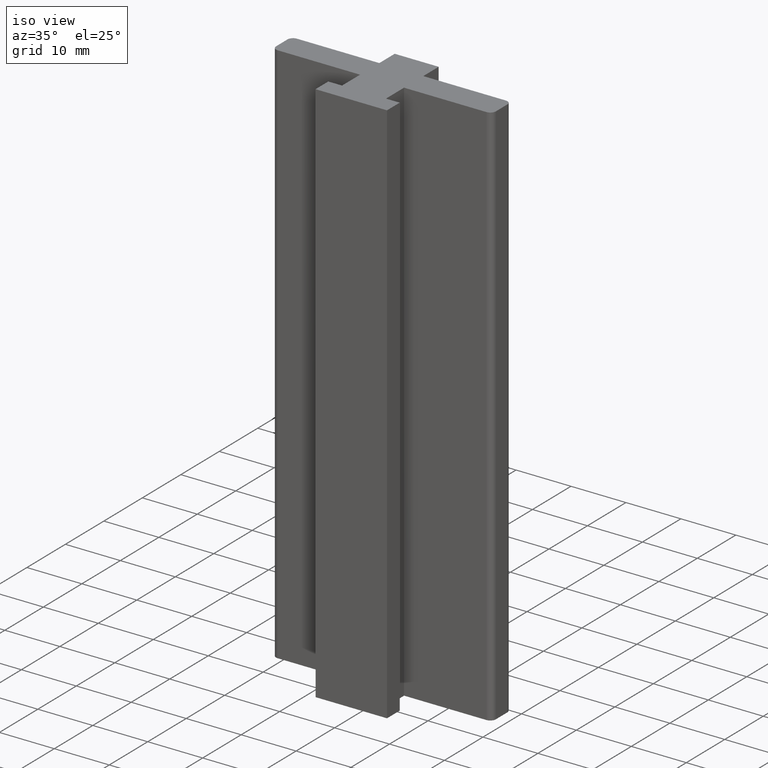
[diagram: clean part render]
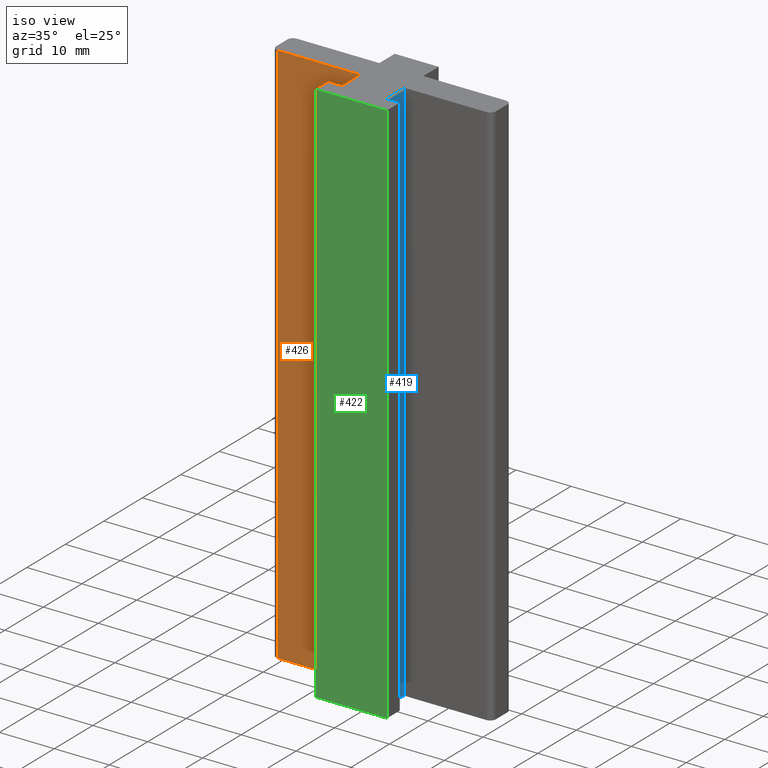
[diagram: same view with three faces highlighted in distinct colors, each labeled with its STEP entity id]
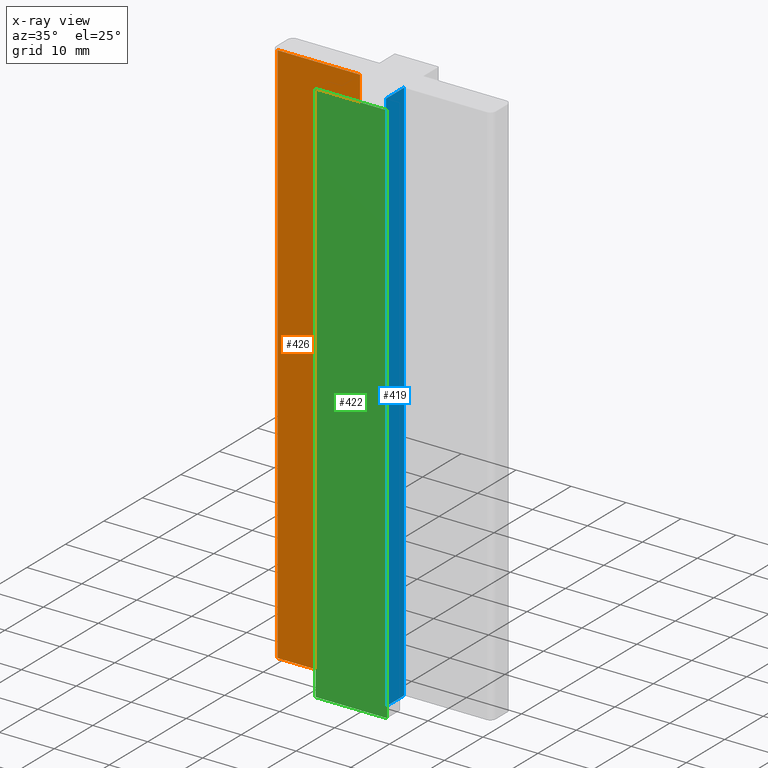
[diagram: x-ray of the same camera — body ghosted, the three highlighted faces saturated]
A machine part, iso view with three faces highlighted in distinct colors.
The next image is the same camera in x-ray (body ghosted, the three faces saturated) — at least one of them is partly hidden behind the body in this view.
Their STEP definitions:

[orange] entity #426 — the highlighted planar face has unit normal (0, -1, 0).
#40=FACE_OUTER_BOUND('',#62,.T.);
#62=EDGE_LOOP('',(#327,#328,#329,#330));
#106=LINE('',#662,#158);
#107=LINE('',#665,#159);
#108=LINE('',#667,#160);
#109=LINE('',#668,#161);
#158=VECTOR('',#538,100.);
#159=VECTOR('',#541,15.);
#160=VECTOR('',#542,15.);
#161=VECTOR('',#543,100.);
#201=VERTEX_POINT('',#658);
#202=VERTEX_POINT('',#660);
#203=VERTEX_POINT('',#664);
#204=VERTEX_POINT('',#666);
#254=EDGE_CURVE('',#201,#202,#106,.T.);
#255=EDGE_CURVE('',#203,#201,#107,.T.);
#256=EDGE_CURVE('',#204,#202,#108,.T.);
#257=EDGE_CURVE('',#203,#204,#109,.T.);
#327=ORIENTED_EDGE('',*,*,#255,.T.);
#328=ORIENTED_EDGE('',*,*,#254,.T.);
#329=ORIENTED_EDGE('',*,*,#256,.F.);
#330=ORIENTED_EDGE('',*,*,#257,.F.);
#406=PLANE('',#454);
#426=ADVANCED_FACE('',(#40),#406,.T.);
#454=AXIS2_PLACEMENT_3D('',#663,#539,#540);
#538=DIRECTION('',(0.,0.,1.));
#539=DIRECTION('center_axis',(0.,-1.,0.));
#540=DIRECTION('ref_axis',(1.,0.,0.));
#541=DIRECTION('',(1.,0.,0.));
#542=DIRECTION('',(1.,0.,0.));
#543=DIRECTION('',(0.,0.,1.));
#658=CARTESIAN_POINT('',(-4.,2.35,0.));
#660=CARTESIAN_POINT('',(-4.,2.35,100.));
#662=CARTESIAN_POINT('',(-4.,2.35,0.));
#663=CARTESIAN_POINT('Origin',(-19.,2.35,0.));
#664=CARTESIAN_POINT('',(-19.,2.35,0.));
#665=CARTESIAN_POINT('',(-19.,2.35,0.));
#666=CARTESIAN_POINT('',(-19.,2.35,100.));
#667=CARTESIAN_POINT('',(-19.,2.35,100.));
#668=CARTESIAN_POINT('',(-19.,2.35,0.));

[blue] entity #419 — the highlighted planar face has unit normal (1, 0, 0).
#33=FACE_OUTER_BOUND('',#55,.T.);
#55=EDGE_LOOP('',(#299,#300,#301,#302));
#85=LINE('',#620,#137);
#86=LINE('',#623,#138);
#87=LINE('',#625,#139);
#88=LINE('',#626,#140);
#137=VECTOR('',#503,100.);
#138=VECTOR('',#506,4.7);
#139=VECTOR('',#507,4.7);
#140=VECTOR('',#508,100.);
#187=VERTEX_POINT('',#616);
#188=VERTEX_POINT('',#618);
#189=VERTEX_POINT('',#622);
#190=VERTEX_POINT('',#624);
#233=EDGE_CURVE('',#187,#188,#85,.T.);
#234=EDGE_CURVE('',#189,#187,#86,.T.);
#235=EDGE_CURVE('',#190,#188,#87,.T.);
#236=EDGE_CURVE('',#189,#190,#88,.T.);
#299=ORIENTED_EDGE('',*,*,#234,.T.);
#300=ORIENTED_EDGE('',*,*,#233,.T.);
#301=ORIENTED_EDGE('',*,*,#235,.F.);
#302=ORIENTED_EDGE('',*,*,#236,.F.);
#399=PLANE('',#447);
#419=ADVANCED_FACE('',(#33),#399,.T.);
#447=AXIS2_PLACEMENT_3D('',#621,#504,#505);
#503=DIRECTION('',(0.,0.,1.));
#504=DIRECTION('center_axis',(1.,0.,0.));
#505=DIRECTION('ref_axis',(0.,1.,0.));
#506=DIRECTION('',(0.,1.,0.));
#507=DIRECTION('',(0.,1.,0.));
#508=DIRECTION('',(0.,0.,1.));
#616=CARTESIAN_POINT('',(4.,2.35,0.));
#618=CARTESIAN_POINT('',(4.,2.35,100.));
#620=CARTESIAN_POINT('',(4.,2.35,0.));
#621=CARTESIAN_POINT('Origin',(4.,-2.35,0.));
#622=CARTESIAN_POINT('',(4.,-2.35,0.));
#623=CARTESIAN_POINT('',(4.,-2.35,0.));
#624=CARTESIAN_POINT('',(4.,-2.35,100.));
#625=CARTESIAN_POINT('',(4.,-2.35,100.));
#626=CARTESIAN_POINT('',(4.,-2.35,0.));

[green] entity #422 — the highlighted planar face has unit normal (0, -1, 0).
#36=FACE_OUTER_BOUND('',#58,.T.);
#58=EDGE_LOOP('',(#311,#312,#313,#314));
#94=LINE('',#638,#146);
#95=LINE('',#641,#147);
#96=LINE('',#643,#148);
#97=LINE('',#644,#149);
#146=VECTOR('',#518,100.);
#147=VECTOR('',#521,13.);
#148=VECTOR('',#522,13.);
#149=VECTOR('',#523,100.);
#193=VERTEX_POINT('',#634);
#194=VERTEX_POINT('',#636);
#195=VERTEX_POINT('',#640);
#196=VERTEX_POINT('',#642);
#242=EDGE_CURVE('',#193,#194,#94,.T.);
#243=EDGE_CURVE('',#195,#193,#95,.T.);
#244=EDGE_CURVE('',#196,#194,#96,.T.);
#245=EDGE_CURVE('',#195,#196,#97,.T.);
#311=ORIENTED_EDGE('',*,*,#243,.T.);
#312=ORIENTED_EDGE('',*,*,#242,.T.);
#313=ORIENTED_EDGE('',*,*,#244,.F.);
#314=ORIENTED_EDGE('',*,*,#245,.F.);
#402=PLANE('',#450);
#422=ADVANCED_FACE('',(#36),#402,.T.);
#450=AXIS2_PLACEMENT_3D('',#639,#519,#520);
#518=DIRECTION('',(0.,0.,1.));
#519=DIRECTION('center_axis',(0.,-1.,0.));
#520=DIRECTION('ref_axis',(1.,0.,0.));
#521=DIRECTION('',(1.,0.,0.));
#522=DIRECTION('',(1.,0.,0.));
#523=DIRECTION('',(0.,0.,1.));
#634=CARTESIAN_POINT('',(6.5,-5.65,0.));
#636=CARTESIAN_POINT('',(6.5,-5.65,100.));
#638=CARTESIAN_POINT('',(6.5,-5.65,0.));
#639=CARTESIAN_POINT('Origin',(-6.5,-5.65,0.));
#640=CARTESIAN_POINT('',(-6.5,-5.65,0.));
#641=CARTESIAN_POINT('',(-6.5,-5.65,0.));
#642=CARTESIAN_POINT('',(-6.5,-5.65,100.));
#643=CARTESIAN_POINT('',(-6.5,-5.65,100.));
#644=CARTESIAN_POINT('',(-6.5,-5.65,0.));